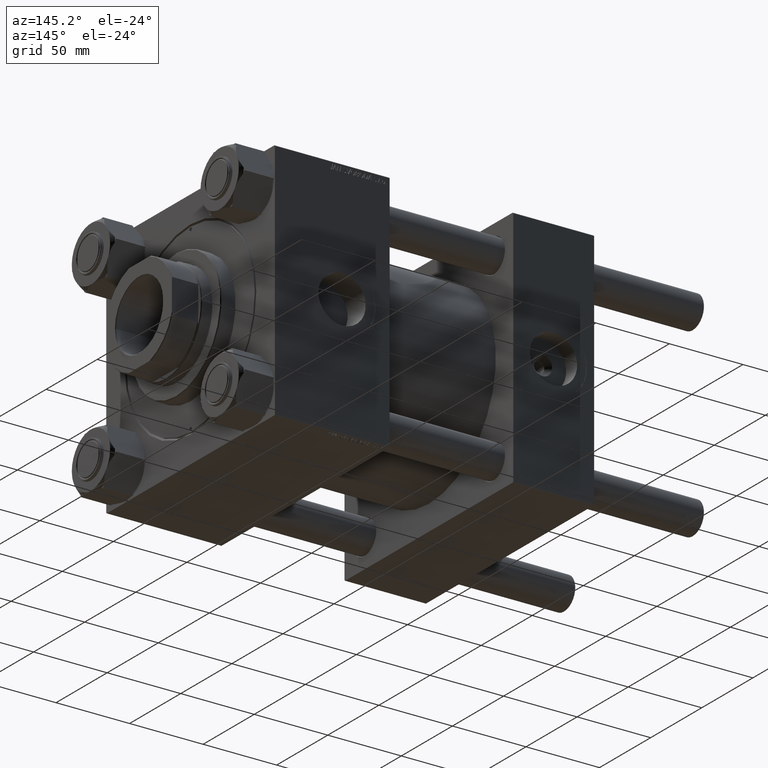
[diagram: clean part render]
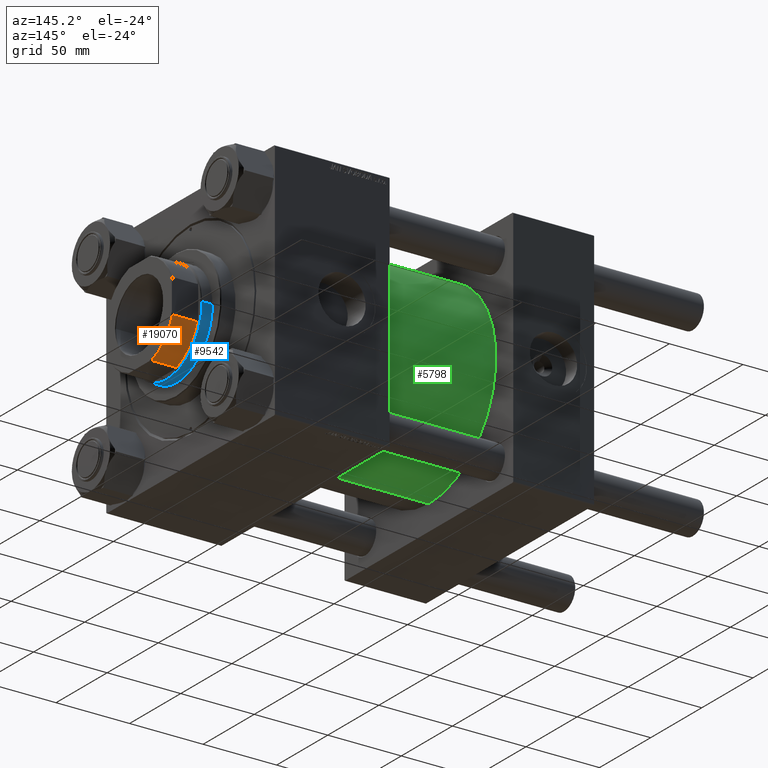
[diagram: same view with three faces highlighted in distinct colors, each labeled with its STEP entity id]
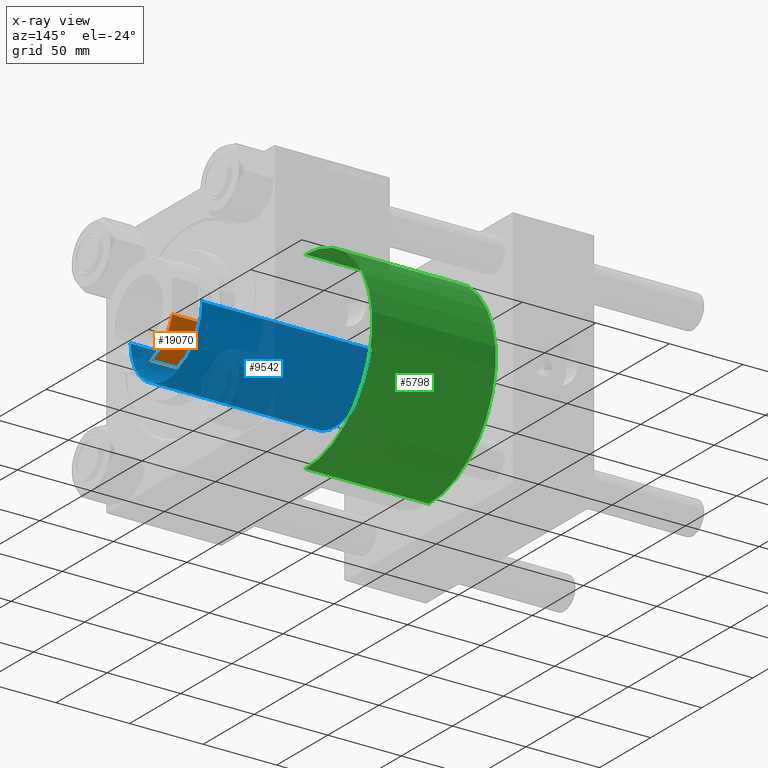
[diagram: x-ray of the same camera — body ghosted, the three highlighted faces saturated]
A machine part, auxiliary view with three faces highlighted in distinct colors.
The next image is the same camera in x-ray (body ghosted, the three faces saturated) — at least one of them is partly hidden behind the body in this view.
Their STEP definitions:

[orange] entity #19070 — the highlighted cylindrical surface (partial cylindrical patch) has radius 34 mm, axis along (1, 0, -0).
#105 = DIRECTION ( 'NONE',  ( -0.000000000000000000, -0.000000000000000000, 1.000000000000000000 ) ) ;
#1763 = AXIS2_PLACEMENT_3D ( 'NONE', #2275, #48024, #6098 ) ;
#1918 = EDGE_CURVE ( 'NONE', #13326, #22351, #9004, .T. ) ;
#2100 = CARTESIAN_POINT ( 'NONE',  ( 0.000000000000000000, 0.000000000000000000, 179.5000000000000284 ) ) ;
#2275 = CARTESIAN_POINT ( 'NONE',  ( 0.000000000000000000, 0.000000000000000000, 196.4999999999997726 ) ) ;
#4433 = DIRECTION ( 'NONE',  ( -0.000000000000000000, -0.000000000000000000, 1.000000000000000000 ) ) ;
#5257 = ORIENTED_EDGE ( 'NONE', *, *, #36902, .T. ) ;
#5392 = VERTEX_POINT ( 'NONE', #29255 ) ;
#5925 = DIRECTION ( 'NONE',  ( -0.000000000000000000, -0.000000000000000000, 1.000000000000000000 ) ) ;
#6098 = DIRECTION ( 'NONE',  ( 1.000000000000000000, -8.881784197001252323E-16, 0.000000000000000000 ) ) ;
#6556 = EDGE_CURVE ( 'NONE', #5392, #10394, #46972, .T. ) ;
#8814 = ORIENTED_EDGE ( 'NONE', *, *, #6556, .T. ) ;
#9004 = LINE ( 'NONE', #19747, #34272 ) ;
#10394 = VERTEX_POINT ( 'NONE', #25047 ) ;
#12012 = CARTESIAN_POINT ( 'NONE',  ( -31.99999999999998579, 11.48912529307610164, -0.001000000000001000089 ) ) ;
#13326 = VERTEX_POINT ( 'NONE', #45016 ) ;
#18941 = VECTOR ( 'NONE', #25245, 1000.000000000000000 ) ;
#19070 = ADVANCED_FACE ( 'NONE', ( #31711 ), #24071, .T. ) ;
#19747 = CARTESIAN_POINT ( 'NONE',  ( -11.48912529307606256, 32.00000000000000000, -0.001000000000001000089 ) ) ;
#20629 = ORIENTED_EDGE ( 'NONE', *, *, #22552, .T. ) ;
#20958 = AXIS2_PLACEMENT_3D ( 'NONE', #2100, #5925, #33467 ) ;
#22351 = VERTEX_POINT ( 'NONE', #22568 ) ;
#22552 = EDGE_CURVE ( 'NONE', #13326, #5392, #35598, .T. ) ;
#22568 = CARTESIAN_POINT ( 'NONE',  ( -11.48912529307606256, 32.00000000000000000, 196.4999999999997442 ) ) ;
#24071 = CYLINDRICAL_SURFACE ( 'NONE', #27310, 34.00000000000000000 ) ;
#25047 = CARTESIAN_POINT ( 'NONE',  ( -31.99999999999998579, 11.48912529307610164, 196.4999999999997442 ) ) ;
#25245 = DIRECTION ( 'NONE',  ( -0.000000000000000000, -0.000000000000000000, 1.000000000000000000 ) ) ;
#27310 = AXIS2_PLACEMENT_3D ( 'NONE', #43461, #105, #34551 ) ;
#29255 = CARTESIAN_POINT ( 'NONE',  ( -31.99999999999998579, 11.48912529307612118, 179.5000000000000284 ) ) ;
#31711 = FACE_OUTER_BOUND ( 'NONE', #38571, .T. ) ;
#33467 = DIRECTION ( 'NONE',  ( -1.000000000000000000, -2.664535259100376091E-15, 0.000000000000000000 ) ) ;
#34272 = VECTOR ( 'NONE', #4433, 1000.000000000000000 ) ;
#34551 = DIRECTION ( 'NONE',  ( 1.000000000000000000, 0.000000000000000000, 0.000000000000000000 ) ) ;
#35598 = CIRCLE ( 'NONE', #20958, 34.00000000000000000 ) ;
#36119 = ORIENTED_EDGE ( 'NONE', *, *, #1918, .F. ) ;
#36902 = EDGE_CURVE ( 'NONE', #10394, #22351, #40034, .T. ) ;
#38571 = EDGE_LOOP ( 'NONE', ( #8814, #5257, #36119, #20629 ) ) ;
#40034 = CIRCLE ( 'NONE', #1763, 34.00000000000000000 ) ;
#43461 = CARTESIAN_POINT ( 'NONE',  ( 0.000000000000000000, 0.000000000000000000, -0.001000000000001000089 ) ) ;
#45016 = CARTESIAN_POINT ( 'NONE',  ( -11.48912529307606079, 32.00000000000000000, 179.5000000000000284 ) ) ;
#46972 = LINE ( 'NONE', #12012, #18941 ) ;
#48024 = DIRECTION ( 'NONE',  ( -0.000000000000000000, -0.000000000000000000, -1.000000000000000000 ) ) ;

[blue] entity #9542 — the highlighted cylindrical surface (partial cylindrical patch) has radius 35 mm, axis along (-1, 0, 0).
#141 = DIRECTION ( 'NONE',  ( 0.000000000000000000, 0.000000000000000000, -1.000000000000000000 ) ) ;
#734 = ORIENTED_EDGE ( 'NONE', *, *, #20386, .T. ) ;
#3400 = CARTESIAN_POINT ( 'NONE',  ( 35.00000000000000711, 4.286263797015737285E-15, 178.5000000000000284 ) ) ;
#6129 = ORIENTED_EDGE ( 'NONE', *, *, #43123, .T. ) ;
#6311 = DIRECTION ( 'NONE',  ( -0.000000000000000000, -0.000000000000000000, -1.000000000000000000 ) ) ;
#7713 = EDGE_CURVE ( 'NONE', #29035, #48511, #9875, .T. ) ;
#7731 = CARTESIAN_POINT ( 'NONE',  ( -35.00000000000000711, 0.000000000000000000, 64.00000000000000000 ) ) ;
#9542 = ADVANCED_FACE ( 'NONE', ( #34012 ), #50104, .T. ) ;
#9875 = LINE ( 'NONE', #33348, #9994 ) ;
#9994 = VECTOR ( 'NONE', #6311, 1000.000000000000000 ) ;
#11632 = ORIENTED_EDGE ( 'NONE', *, *, #7713, .T. ) ;
#14374 = EDGE_LOOP ( 'NONE', ( #734, #11632, #6129, #25584 ) ) ;
#15127 = DIRECTION ( 'NONE',  ( -1.000000000000000000, 0.000000000000000000, 0.000000000000000000 ) ) ;
#19454 = EDGE_CURVE ( 'NONE', #29196, #29172, #24952, .T. ) ;
#20386 = EDGE_CURVE ( 'NONE', #29196, #29035, #37171, .T. ) ;
#21625 = DIRECTION ( 'NONE',  ( -0.000000000000000000, -0.000000000000000000, -1.000000000000000000 ) ) ;
#24899 = VECTOR ( 'NONE', #21625, 1000.000000000000000 ) ;
#24952 = LINE ( 'NONE', #36431, #24899 ) ;
#25584 = ORIENTED_EDGE ( 'NONE', *, *, #19454, .F. ) ;
#26360 = DIRECTION ( 'NONE',  ( -0.000000000000000000, -0.000000000000000000, -1.000000000000000000 ) ) ;
#26865 = CARTESIAN_POINT ( 'NONE',  ( -35.00000000000000711, 0.000000000000000000, 178.5000000000000284 ) ) ;
#28388 = CARTESIAN_POINT ( 'NONE',  ( 0.000000000000000000, 0.000000000000000000, 64.00000000000000000 ) ) ;
#29035 = VERTEX_POINT ( 'NONE', #3400 ) ;
#29172 = VERTEX_POINT ( 'NONE', #7731 ) ;
#29196 = VERTEX_POINT ( 'NONE', #26865 ) ;
#31263 = CIRCLE ( 'NONE', #36127, 35.00000000000000711 ) ;
#33348 = CARTESIAN_POINT ( 'NONE',  ( 35.00000000000000711, 4.286263797015737285E-15, 179.0000000000000000 ) ) ;
#34012 = FACE_OUTER_BOUND ( 'NONE', #14374, .T. ) ;
#35089 = CARTESIAN_POINT ( 'NONE',  ( 0.000000000000000000, 0.000000000000000000, 178.5000000000000284 ) ) ;
#36127 = AXIS2_PLACEMENT_3D ( 'NONE', #28388, #47285, #43458 ) ;
#36431 = CARTESIAN_POINT ( 'NONE',  ( -35.00000000000000711, 0.000000000000000000, 179.0000000000000000 ) ) ;
#37171 = CIRCLE ( 'NONE', #48587, 35.00000000000000711 ) ;
#37764 = AXIS2_PLACEMENT_3D ( 'NONE', #45511, #26360, #15127 ) ;
#39911 = DIRECTION ( 'NONE',  ( 1.000000000000000000, 0.000000000000000000, 0.000000000000000000 ) ) ;
#43123 = EDGE_CURVE ( 'NONE', #48511, #29172, #31263, .T. ) ;
#43389 = CARTESIAN_POINT ( 'NONE',  ( 35.00000000000000711, 4.286263797015737285E-15, 64.00000000000000000 ) ) ;
#43458 = DIRECTION ( 'NONE',  ( 1.000000000000000000, 0.000000000000000000, 0.000000000000000000 ) ) ;
#45511 = CARTESIAN_POINT ( 'NONE',  ( 0.000000000000000000, 0.000000000000000000, 179.0000000000000000 ) ) ;
#47285 = DIRECTION ( 'NONE',  ( 0.000000000000000000, 0.000000000000000000, 1.000000000000000000 ) ) ;
#48511 = VERTEX_POINT ( 'NONE', #43389 ) ;
#48587 = AXIS2_PLACEMENT_3D ( 'NONE', #35089, #141, #39911 ) ;
#50104 = CYLINDRICAL_SURFACE ( 'NONE', #37764, 35.00000000000000711 ) ;

[green] entity #5798 — the highlighted cylindrical surface (partial cylindrical patch) has radius 65.5 mm, axis along (-1, -0, -0).
#52 = ORIENTED_EDGE ( 'NONE', *, *, #36564, .T. ) ;
#95 = AXIS2_PLACEMENT_3D ( 'NONE', #2453, #21085, #36658 ) ;
#1565 = VERTEX_POINT ( 'NONE', #30543 ) ;
#2292 = DIRECTION ( 'NONE',  ( -1.000000000000000000, -0.000000000000000000, -0.000000000000000000 ) ) ;
#2453 = CARTESIAN_POINT ( 'NONE',  ( 54.99999999999999289, 0.000000000000000000, 0.000000000000000000 ) ) ;
#2613 = AXIS2_PLACEMENT_3D ( 'NONE', #40120, #5865, #4910 ) ;
#4910 = DIRECTION ( 'NONE',  ( 0.000000000000000000, 0.000000000000000000, 1.000000000000000000 ) ) ;
#5798 = ADVANCED_FACE ( 'NONE', ( #20224 ), #21428, .T. ) ;
#5865 = DIRECTION ( 'NONE',  ( -1.000000000000000000, -0.000000000000000000, -0.000000000000000000 ) ) ;
#6286 = LINE ( 'NONE', #25929, #26580 ) ;
#11437 = DIRECTION ( 'NONE',  ( 0.000000000000000000, 0.000000000000000000, -1.000000000000000000 ) ) ;
#11519 = CARTESIAN_POINT ( 'NONE',  ( 54.99999999999999289, 8.021436534415164826E-15, -65.50000000000001421 ) ) ;
#12162 = VERTEX_POINT ( 'NONE', #50168 ) ;
#13877 = CARTESIAN_POINT ( 'NONE',  ( 54.99999999999999289, 0.000000000000000000, 65.50000000000001421 ) ) ;
#15673 = ORIENTED_EDGE ( 'NONE', *, *, #30365, .F. ) ;
#17260 = ORIENTED_EDGE ( 'NONE', *, *, #38169, .F. ) ;
#19589 = DIRECTION ( 'NONE',  ( 1.000000000000000000, 0.000000000000000000, 0.000000000000000000 ) ) ;
#20224 = FACE_OUTER_BOUND ( 'NONE', #22517, .T. ) ;
#20437 = CIRCLE ( 'NONE', #95, 65.50000000000001421 ) ;
#21085 = DIRECTION ( 'NONE',  ( 1.000000000000000000, -0.000000000000000000, -0.000000000000000000 ) ) ;
#21146 = EDGE_CURVE ( 'NONE', #12162, #22593, #6286, .T. ) ;
#21428 = CYLINDRICAL_SURFACE ( 'NONE', #2613, 65.50000000000001421 ) ;
#22517 = EDGE_LOOP ( 'NONE', ( #15673, #34997, #52, #17260 ) ) ;
#22593 = VERTEX_POINT ( 'NONE', #11519 ) ;
#25929 = CARTESIAN_POINT ( 'NONE',  ( 139.0000000000000000, 8.021436534415164826E-15, -65.50000000000001421 ) ) ;
#26580 = VECTOR ( 'NONE', #48149, 1000.000000000000000 ) ;
#28569 = CARTESIAN_POINT ( 'NONE',  ( 139.0000000000000000, 0.000000000000000000, 65.50000000000001421 ) ) ;
#30026 = CIRCLE ( 'NONE', #38190, 65.50000000000001421 ) ;
#30365 = EDGE_CURVE ( 'NONE', #12162, #1565, #30026, .T. ) ;
#30543 = CARTESIAN_POINT ( 'NONE',  ( 139.0000000000000000, 0.000000000000000000, 65.50000000000001421 ) ) ;
#34997 = ORIENTED_EDGE ( 'NONE', *, *, #21146, .T. ) ;
#36564 = EDGE_CURVE ( 'NONE', #22593, #37561, #20437, .T. ) ;
#36658 = DIRECTION ( 'NONE',  ( 0.000000000000000000, 0.000000000000000000, 1.000000000000000000 ) ) ;
#37561 = VERTEX_POINT ( 'NONE', #13877 ) ;
#38169 = EDGE_CURVE ( 'NONE', #1565, #37561, #48487, .T. ) ;
#38190 = AXIS2_PLACEMENT_3D ( 'NONE', #43320, #19589, #11437 ) ;
#40120 = CARTESIAN_POINT ( 'NONE',  ( 139.0000000000000000, 0.000000000000000000, 0.000000000000000000 ) ) ;
#40920 = VECTOR ( 'NONE', #2292, 1000.000000000000000 ) ;
#43320 = CARTESIAN_POINT ( 'NONE',  ( 139.0000000000000000, 0.000000000000000000, 0.000000000000000000 ) ) ;
#48149 = DIRECTION ( 'NONE',  ( -1.000000000000000000, -0.000000000000000000, -0.000000000000000000 ) ) ;
#48487 = LINE ( 'NONE', #28569, #40920 ) ;
#50168 = CARTESIAN_POINT ( 'NONE',  ( 139.0000000000000000, 8.021436534415164826E-15, -65.50000000000001421 ) ) ;